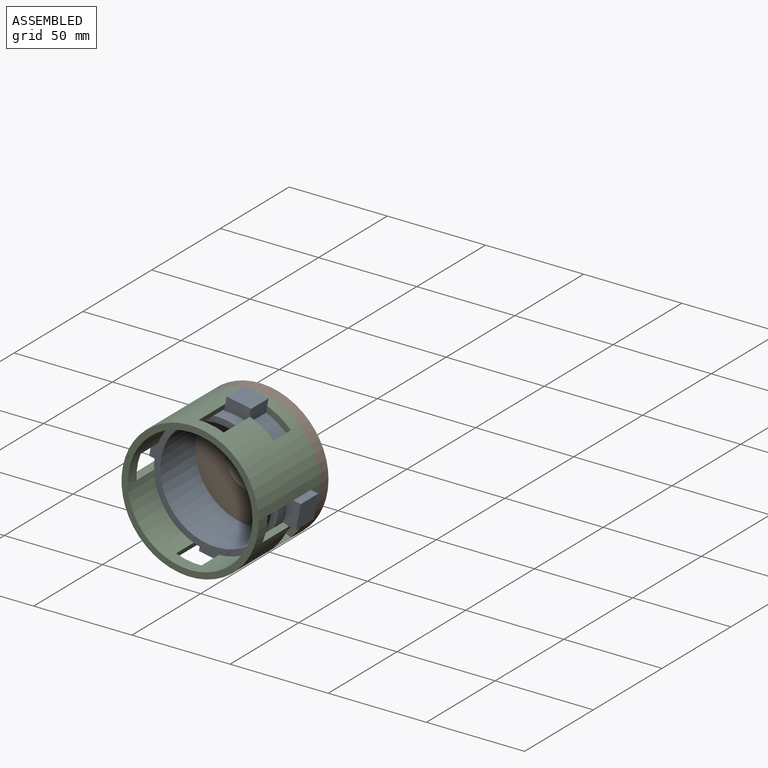
[diagram: assembled view]
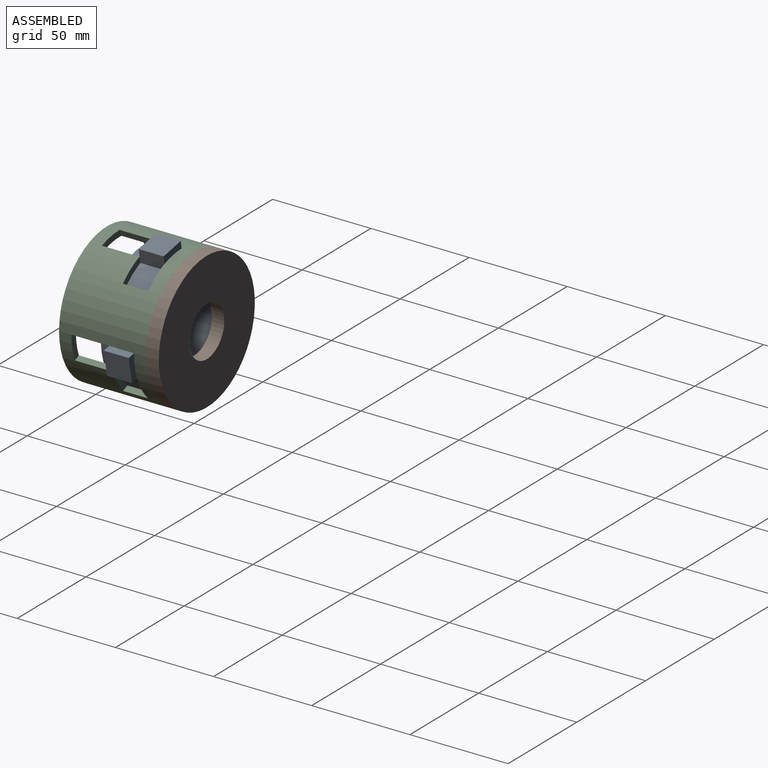
[diagram: assembled view, second angle]
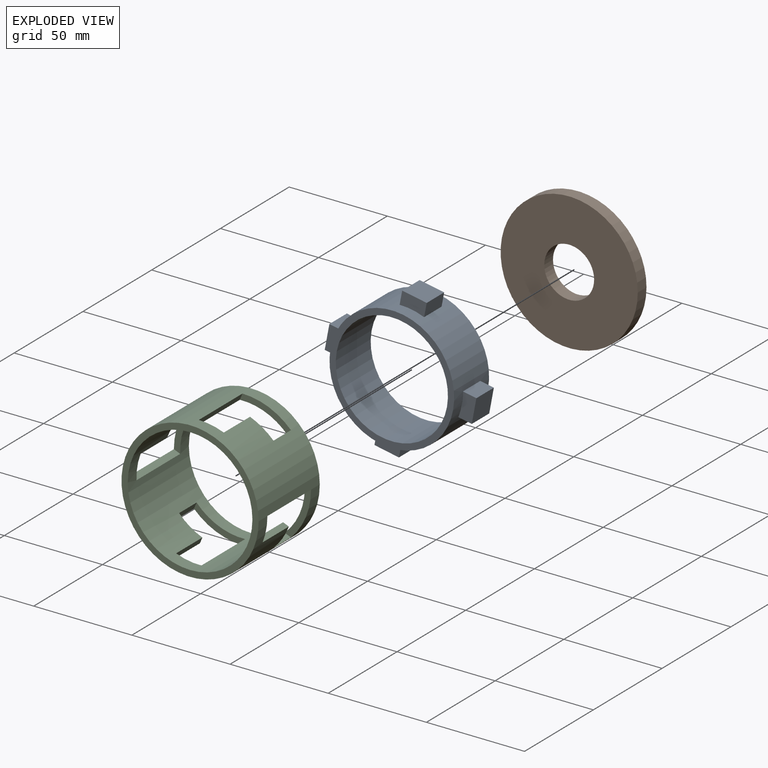
[diagram: exploded view]
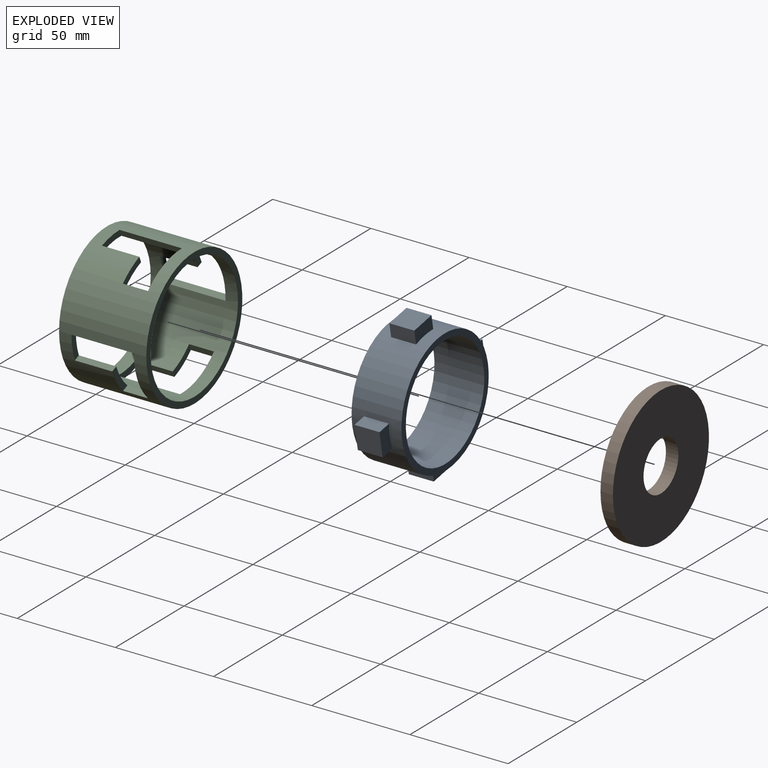
[diagram: exploded view, second angle]
ASSEMBLY  parts=3 mates=3
PART A: 24 faces, bbox 76.2x25.4x76.2 mm
  f0: cylinder r=28.57mm len=57.15mm, axis (0,1,0), area 4560.4mm2, adj f2,f3
  f1: cylinder r=31.75mm len=63.5mm, axis (0,1,0), area 4417.5mm2, adj f2,f3,f4,f5,f7,f8,f9,f10
  f2: plane 63.5x63.5mm, normal (0,-1,0), area 601.7mm2, adj f0,f1
  f3: plane 63.5x63.5mm, normal (0,1,0), area 601.7mm2, adj f0,f1
  f4: plane 12.7x6.99mm, normal (1,0,0), area 88.8mm2, adj f1,f6,f7,f8
  f5: plane 12.7x6.99mm, normal (-1,0,0), area 88.8mm2, adj f1,f6,f7,f8
  f6: plane 12.7x12.7mm, normal (0,0,1), area 161.3mm2, adj f4,f5,f7,f8
  f7: plane 12.7x6.99mm, normal (0,-1,0), area 83.3mm2, adj f1,f4,f5,f6
  f8: plane 12.7x6.99mm, normal (0,1,0), area 83.3mm2, adj f1,f4,f5,f6
  f9: plane 12.7x6.99mm, normal (0,0,1), area 88.8mm2, adj f1,f11,f12,f13
  f10: plane 12.7x6.99mm, normal (0,0,-1), area 88.8mm2, adj f1,f11,f12,f13
  f11: plane 12.7x12.7mm, normal (-1,0,0), area 161.3mm2, adj f9,f10,f12,f13
  f12: plane 12.7x6.99mm, normal (0,-1,0), area 83.3mm2, adj f1,f9,f10,f11
  f13: plane 12.7x6.99mm, normal (0,1,0), area 83.3mm2, adj f1,f9,f10,f11
  f14: plane 12.7x6.99mm, normal (-1,0,0), area 88.8mm2, adj f1,f16,f17,f18
  f15: plane 12.7x6.99mm, normal (1,0,0), area 88.8mm2, adj f1,f16,f17,f18
  f16: plane 12.7x12.7mm, normal (0,0,-1), area 161.3mm2, adj f14,f15,f17,f18
  f17: plane 12.7x6.99mm, normal (0,-1,0), area 83.3mm2, adj f1,f14,f15,f16
  f18: plane 12.7x6.99mm, normal (0,1,0), area 83.3mm2, adj f1,f14,f15,f16
  f19: plane 12.7x6.99mm, normal (0,0,-1), area 88.8mm2, adj f1,f21,f22,f23
  f20: plane 12.7x6.99mm, normal (0,0,1), area 88.8mm2, adj f1,f21,f22,f23
  f21: plane 12.7x12.7mm, normal (1,0,0), area 161.3mm2, adj f19,f20,f22,f23
  f22: plane 12.7x6.99mm, normal (0,-1,0), area 83.3mm2, adj f1,f19,f20,f21
  f23: plane 12.7x6.99mm, normal (0,1,0), area 83.3mm2, adj f1,f19,f20,f21
PART B: 4 faces, bbox 69.9x6.4x69.9 mm
  f0: cylinder r=12.7mm len=25.4mm, axis (0,1,0), area 506.7mm2, adj f2,f3
  f1: cylinder r=34.92mm len=69.85mm, axis (0,1,0), area 1393.4mm2, adj f2,f3
  f2: plane 69.85x69.85mm, normal (0,-1,0), area 3325.3mm2, adj f0,f1
  f3: plane 69.85x69.85mm, normal (0,1,0), area 3325.3mm2, adj f0,f1
PART C: 28 faces, bbox 69.9x44.5x69.9 mm
  f0: cylinder r=31.75mm len=63.5mm, axis (0,1,0), area 6465.3mm2, adj f2,f3,f4,f5,f6,f7,f8,f9
  f1: cylinder r=34.92mm len=69.85mm, axis (0,1,0), area 7366.3mm2, adj f2,f3,f4,f5,f6,f7,f8,f9
  f2: plane 13.16x11.02mm, normal (0,1,0), area 45.8mm2, adj f0,f1,f9,f25
  f3: plane 13.16x11.02mm, normal (0,1,0), area 45.8mm2, adj f0,f1,f12,f23
  f4: plane 13.16x11.02mm, normal (0,1,0), area 45.8mm2, adj f0,f1,f15,f21
  f5: plane 13.16x11.02mm, normal (0,1,0), area 45.8mm2, adj f0,f1,f18,f27
  f6: plane 69.85x69.85mm, normal (0,-1,0), area 665.1mm2, adj f0,f1
  f7: plane 69.85x69.85mm, normal (0,1,0), area 665.1mm2, adj f0,f1
  f8: plane 31.75x3.2mm, normal (0.38,0,0.92), area 110.1mm2, adj f0,f1,f10,f24
  f9: plane 12.7x3.2mm, normal (-0.38,0,-0.92), area 44mm2, adj f0,f1,f2,f10
  f10: plane 26.02x13.43mm, normal (0,-1,0), area 87.3mm2, adj f0,f1,f8,f9
  f11: plane 31.75x3.2mm, normal (-0.92,0,0.38), area 110.1mm2, adj f0,f1,f13,f22
  f12: plane 12.7x3.2mm, normal (0.92,0,-0.38), area 44mm2, adj f0,f1,f3,f13
  f13: plane 26.02x13.43mm, normal (0,-1,0), area 87.3mm2, adj f0,f1,f11,f12
  f14: plane 31.75x3.2mm, normal (-0.38,0,-0.92), area 110.1mm2, adj f0,f1,f16,f20
  f15: plane 12.7x3.2mm, normal (0.38,0,0.92), area 44mm2, adj f0,f1,f4,f16
  f16: plane 26.02x13.43mm, normal (0,-1,0), area 87.3mm2, adj f0,f1,f14,f15
  f17: plane 31.75x3.2mm, normal (0.92,0,-0.38), area 110.1mm2, adj f0,f1,f19,f26
  f18: plane 12.7x3.2mm, normal (-0.92,0,0.38), area 44mm2, adj f0,f1,f5,f19
  f19: plane 26.02x13.43mm, normal (0,-1,0), area 87.3mm2, adj f0,f1,f17,f18
  f20: plane 14.08x5.34mm, normal (0,1,0), area 41.6mm2, adj f0,f1,f14,f21
  f21: plane 19.05x2.93mm, normal (0.38,0,0.92), area 60.5mm2, adj f0,f1,f4,f20
  f22: plane 14.08x5.34mm, normal (0,1,0), area 41.6mm2, adj f0,f1,f11,f23
  f23: plane 19.05x2.93mm, normal (0.92,0,-0.38), area 60.5mm2, adj f0,f1,f3,f22
  f24: plane 14.08x5.34mm, normal (0,1,0), area 41.6mm2, adj f0,f1,f8,f25
  f25: plane 19.05x2.93mm, normal (-0.38,0,-0.92), area 60.5mm2, adj f0,f1,f2,f24
  f26: plane 14.08x5.34mm, normal (0,1,0), area 41.6mm2, adj f0,f1,f17,f27
  f27: plane 19.05x2.93mm, normal (-0.92,0,0.38), area 60.5mm2, adj f0,f1,f5,f26
PLACE A rot(axis=(0,1,0),10.7deg) t=(-6.29,45.77,-3.95)mm
PLACE B t=(-6.29,52.12,-3.95)mm
PLACE C t=(-6.29,45.77,-3.95)mm fixed
MATE cylindrical C.f0 <-> B.f0  axis (0,-1,0) through (-6.29,1.32,-3.95)mm
MATE cylindrical A.f0 <-> C.f0  axis (0,-1,0) through (-6.29,20.37,-3.95)mm
MATE planar C.f0 <-> B.f0  axis (0,1,0) through (-6.29,45.77,-3.95)mm
